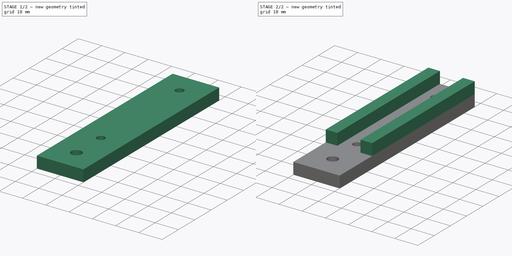
[diagram: build sequence overview — one tinted view per stage of 2, left to right]
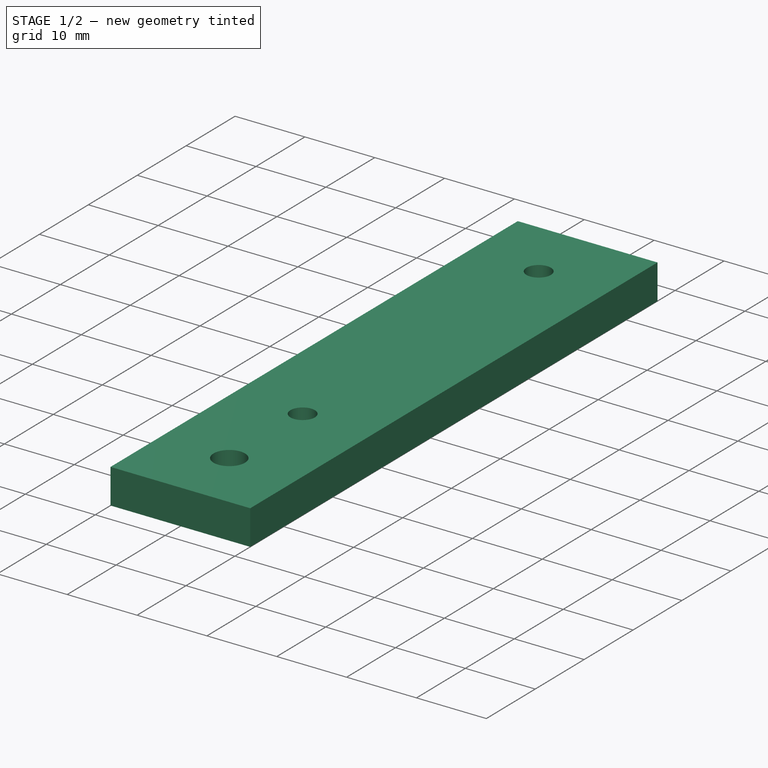
[diagram: stage 1 of 2 — iso view after this stage's code; geometry added in this stage tinted green]
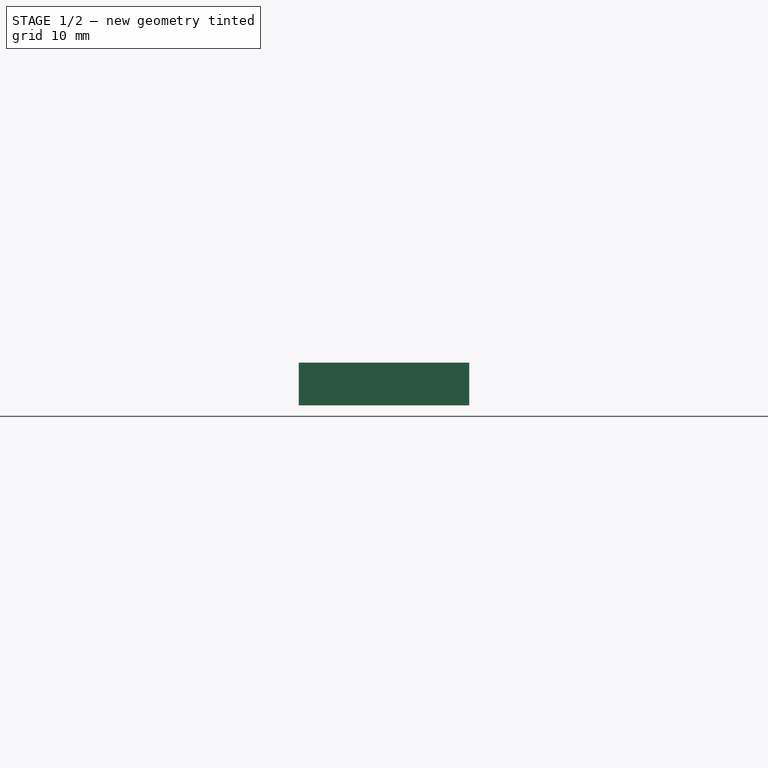
[diagram: stage 1 of 2 — front view after this stage's code; geometry added in this stage tinted green]
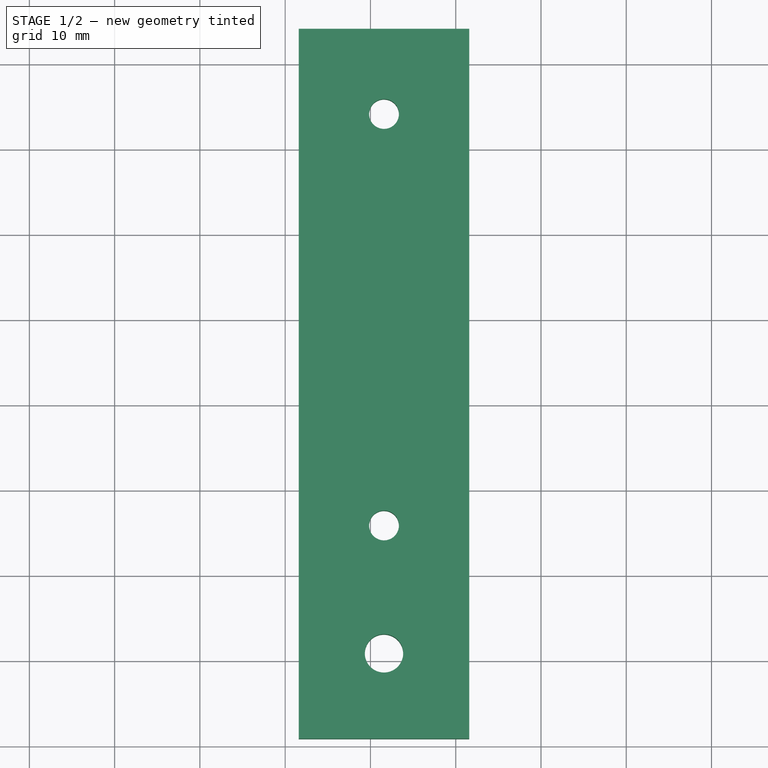
[diagram: stage 1 of 2 — top view after this stage's code; geometry added in this stage tinted green]
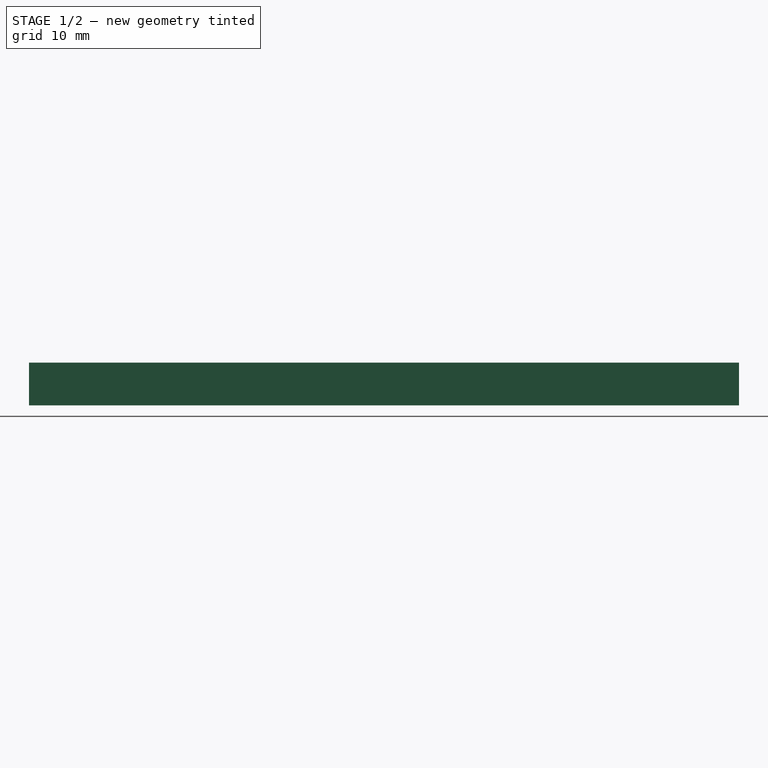
[diagram: stage 1 of 2 — right view after this stage's code; geometry added in this stage tinted green]
FCSTD DOCUMENT
Label: RAMPS-mount-1
objects: Sketcher::SketchObject×2, PartDesign::Pad×2
note: 6 computed .brp shape members not serialized (recipe doc carries the construction recipe); baked Part::Feature solids carry a one-line shape summary decoded from their .brp

FEATURE [Sketcher::SketchObject] Sketch
  sketch-geometry (7):
    g0: Circle CenterX=-48.41 CenterY=-24.13 CenterZ=0 NormalX=0 NormalY=0 NormalZ=1 Radius=1.75
    g1: Circle CenterX=-48.41 CenterY=24.13 CenterZ=0 NormalX=0 NormalY=0 NormalZ=1 Radius=1.75
    g2: LineSegment StartX=-58.41 StartY=-49.13 StartZ=0 EndX=-58.41 EndY=34.13 EndZ=0
    g3: LineSegment StartX=-58.41 StartY=34.13 StartZ=0 EndX=-38.41 EndY=34.13 EndZ=0
    g4: LineSegment StartX=-38.41 StartY=34.13 StartZ=0 EndX=-38.41 EndY=-49.13 EndZ=0
    g5: LineSegment StartX=-38.41 StartY=-49.13 StartZ=0 EndX=-58.41 EndY=-49.13 EndZ=0
    g6: Circle CenterX=-48.41 CenterY=-39.13 CenterZ=0 NormalX=0 NormalY=0 NormalZ=1 Radius=2.25
  constraints (21):
    c: Equal(g1,g0)
    c: DistanceX(g0,g1) = 0
    c: DistanceY(g0,g1) = 48.26
    c: DistanceX(g0) = -48.41
    c: DistanceY(g0) = -24.13
    c: Vertical(g2)
    c: Coincident(g2,g3)
    c: Horizontal(g3)
    c: Coincident(g3,g4)
    c: Vertical(g4)
    c: Coincident(g4,g5)
    c: Coincident(g5,g2)
    c: Horizontal(g5)
    c: Distance(g2,g4) = 20
    c: DistanceX(g0,g2) = -10
    c: DistanceY(g0,g2) = -25
    c: DistanceY(g1,g2) = 10
    c: DistanceX(g2,g6) = 10
    c: DistanceY(g6,g2) = -10
    c: Radius(g6) = 2.25
    c: Radius(g0) = 1.75
FEATURE [PartDesign::Pad] Pad
  Length = 5
  Length2 = 100
  Sketch = -> Sketch
  Type = 0
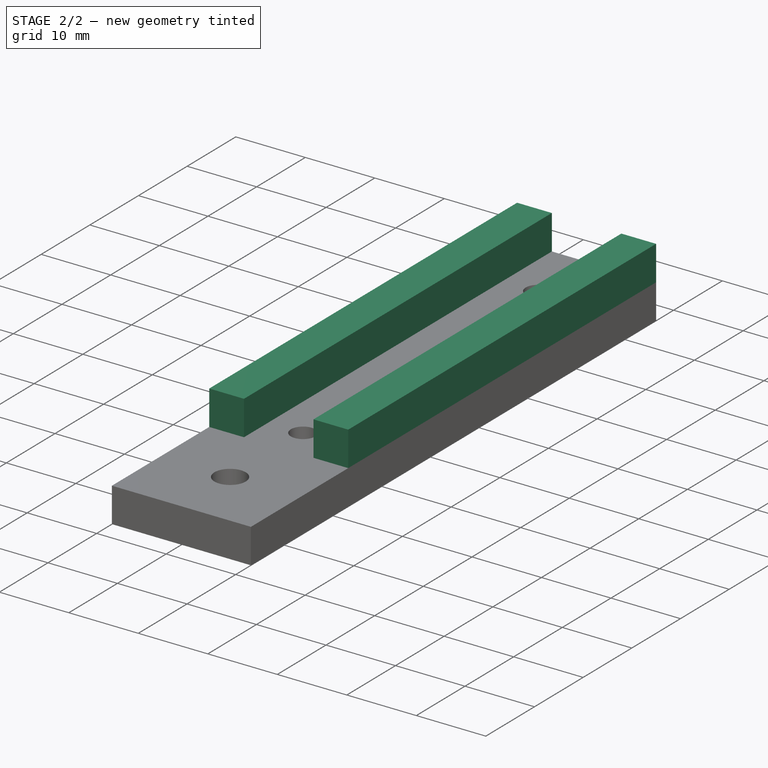
[diagram: stage 2 of 2 — iso view after this stage's code; geometry added in this stage tinted green]
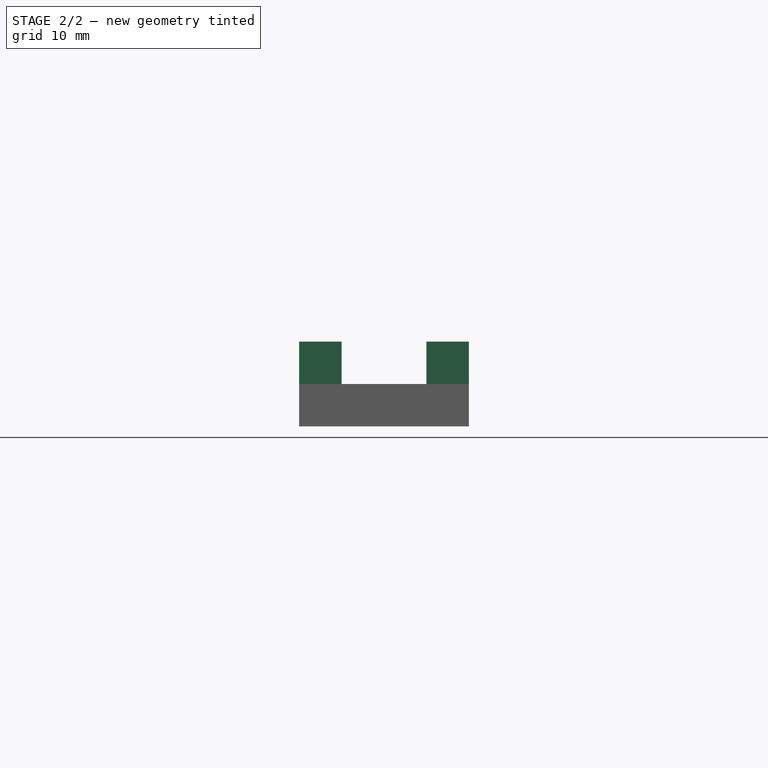
[diagram: stage 2 of 2 — front view after this stage's code; geometry added in this stage tinted green]
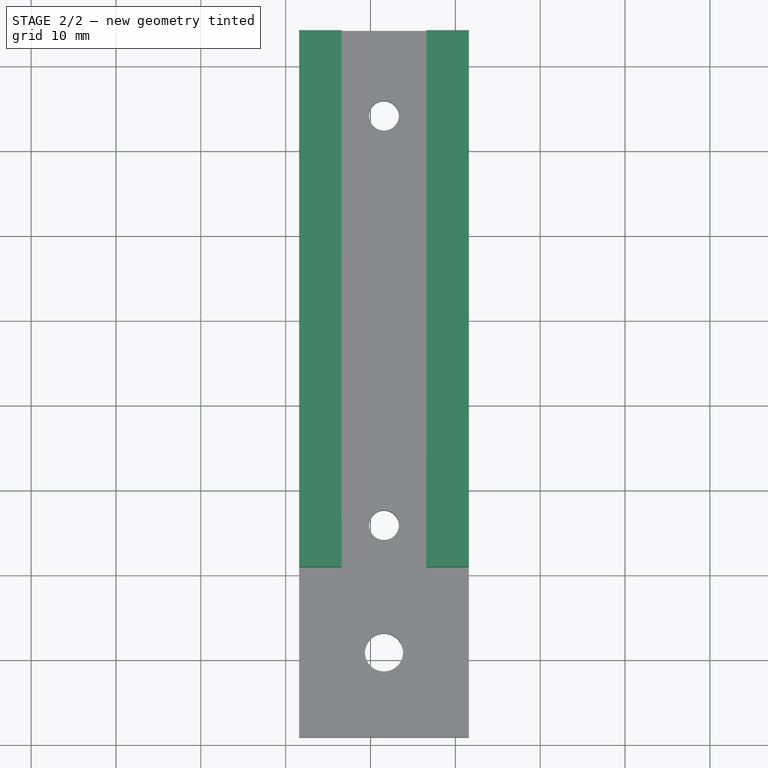
[diagram: stage 2 of 2 — top view after this stage's code; geometry added in this stage tinted green]
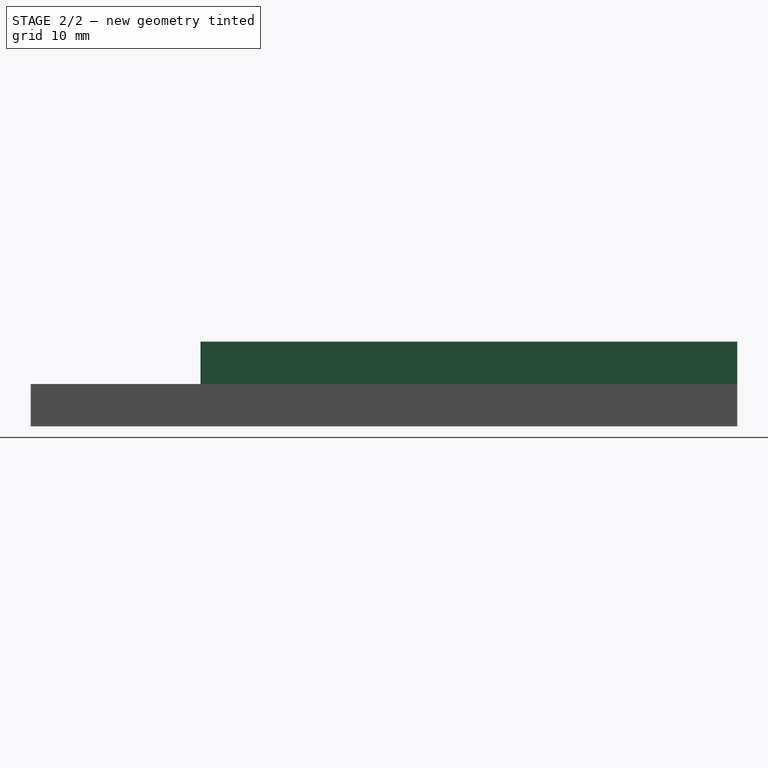
[diagram: stage 2 of 2 — right view after this stage's code; geometry added in this stage tinted green]
FEATURE [Sketcher::SketchObject] Sketch001
  ExternalGeometry = -> [Pad]
  Placement = pos=(0,0,5) rot=(0,0,1;0rad)
  Support = -> Pad [Face9]
  sketch-geometry (8):
    g0: LineSegment StartX=-38.41 StartY=34.13 StartZ=0 EndX=-38.41 EndY=-29.13 EndZ=0
    g1: LineSegment StartX=-58.41 StartY=-29.13 StartZ=0 EndX=-58.41 EndY=34.13 EndZ=0
    g2: LineSegment StartX=-53.41 StartY=-29.13 StartZ=0 EndX=-53.41 EndY=34.13 EndZ=0
    g3: LineSegment StartX=-43.41 StartY=-29.13 StartZ=0 EndX=-43.41 EndY=34.13 EndZ=0
    g4: LineSegment StartX=-58.41 StartY=34.13 StartZ=0 EndX=-53.41 EndY=34.13 EndZ=0
    g5: LineSegment StartX=-38.41 StartY=34.13 StartZ=0 EndX=-43.41 EndY=34.13 EndZ=0
    g6: LineSegment StartX=-58.41 StartY=-29.13 StartZ=0 EndX=-53.41 EndY=-29.13 EndZ=0
    g7: LineSegment StartX=-43.41 StartY=-29.13 StartZ=0 EndX=-38.41 EndY=-29.13 EndZ=0
  constraints (22):
    c: Vertical(g0)
    c: Vertical(g1)
    c: Distance(g-3,g0) = 20
    c: Vertical(g2)
    c: Vertical(g3)
    c: Coincident(g4,g-4)
    c: Coincident(g4,g2)
    c: Coincident(g1,g4)
    c: Coincident(g5,g0)
    c: Coincident(g5,g3)
    c: Coincident(g0,g-4)
    c: PointOnObject(g3,g-4)
    c: PointOnObject(g2,g-4)
    c: Coincident(g6,g1)
    c: Horizontal(g6)
    c: Coincident(g2,g6)
    c: Coincident(g7,g3)
    c: Coincident(g7,g0)
    c: Horizontal(g7)
    c: Equal(g7,g6)
    c: Distance(g-3,g1) = 20
    c: Distance(g7) = 5
FEATURE [PartDesign::Pad] Pad001
  Length = 5
  Length2 = 100
  Sketch = -> Sketch001
  Type = 0
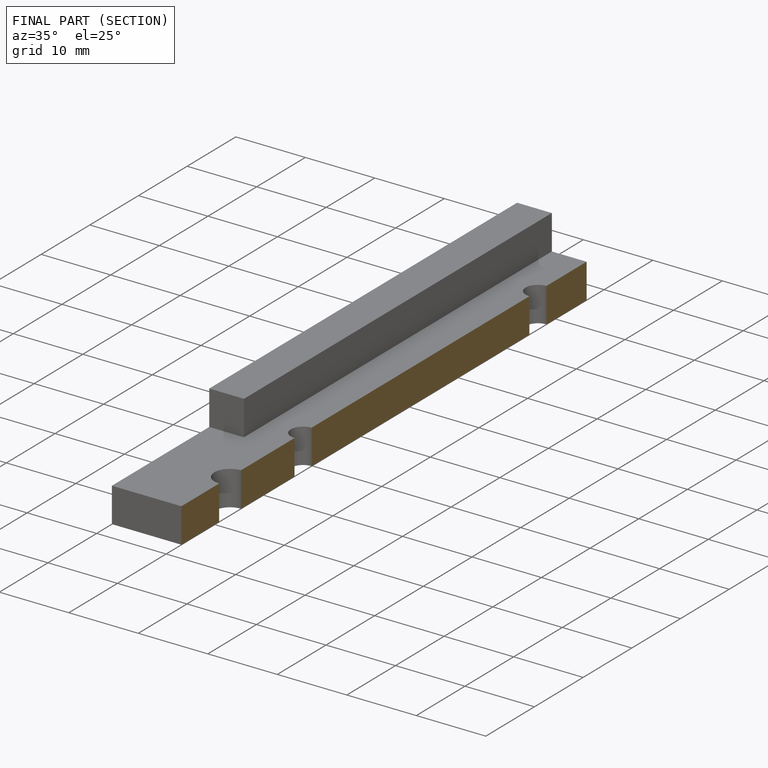
[diagram: finished part — half-section view (interior)]
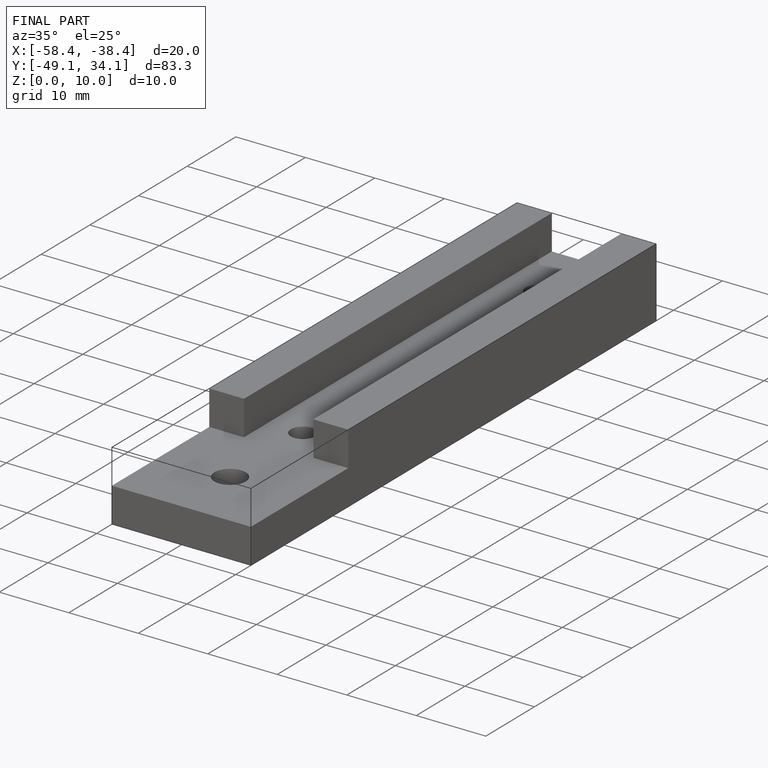
[diagram: finished part — iso view with bounding-box wireframe]
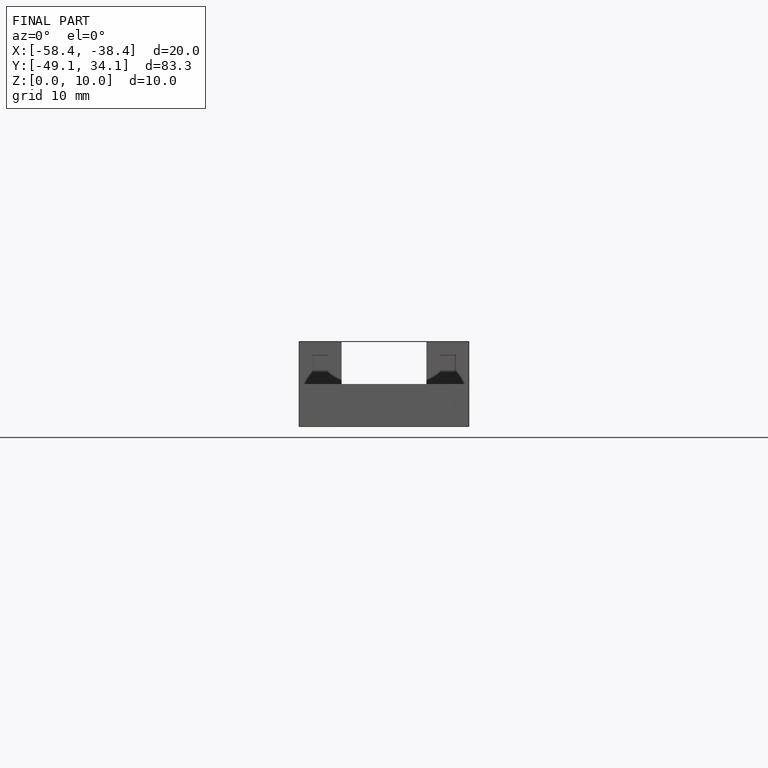
[diagram: finished part — front view with bounding-box wireframe]
